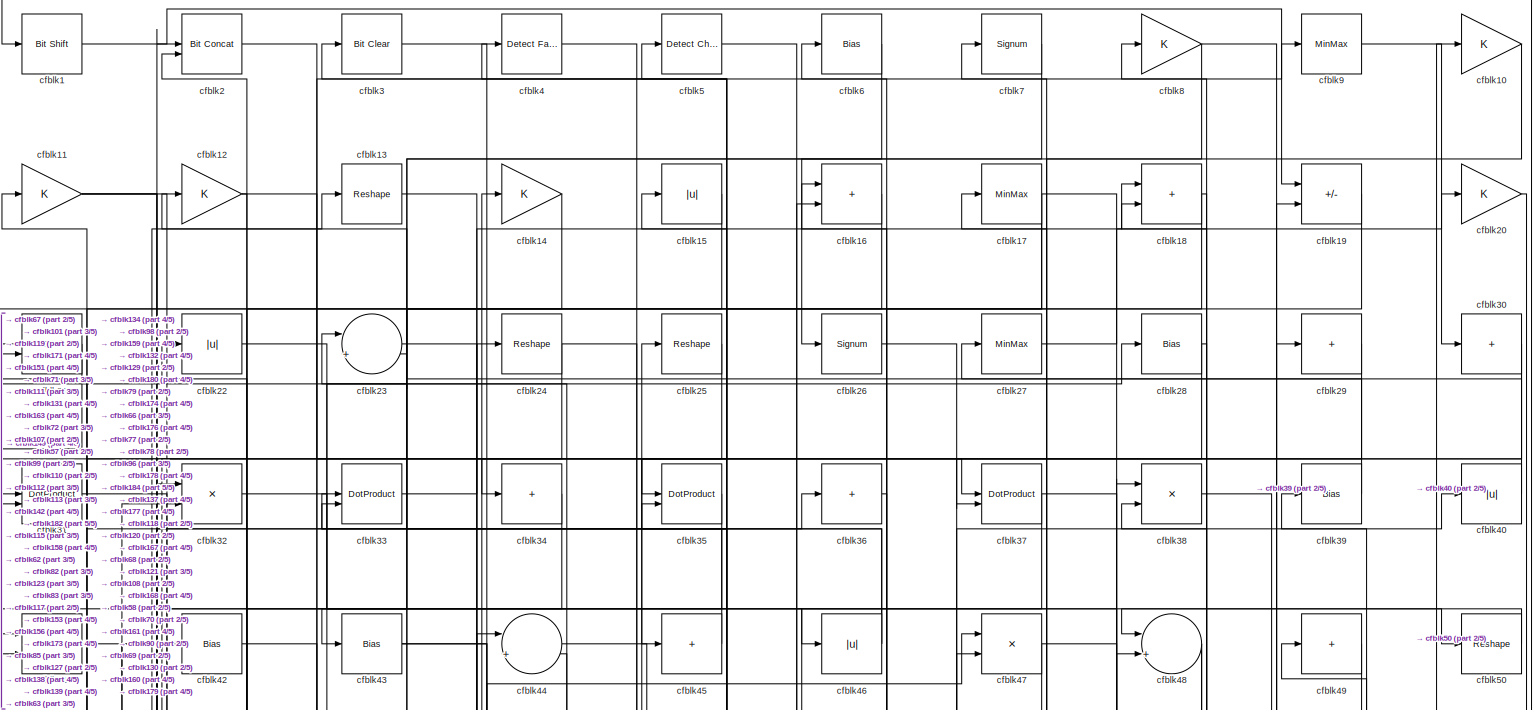
[diagram: root canvas - part 1/5, full width, top band]
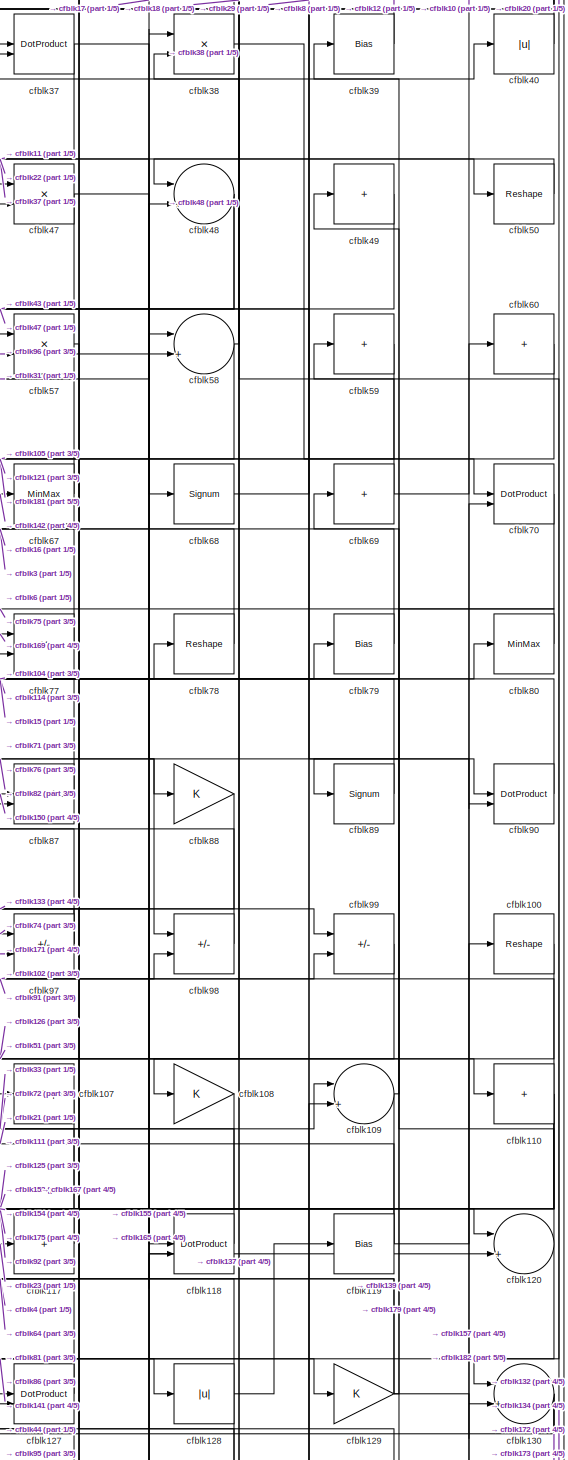
[diagram: root canvas - part 2/5, middle right region]
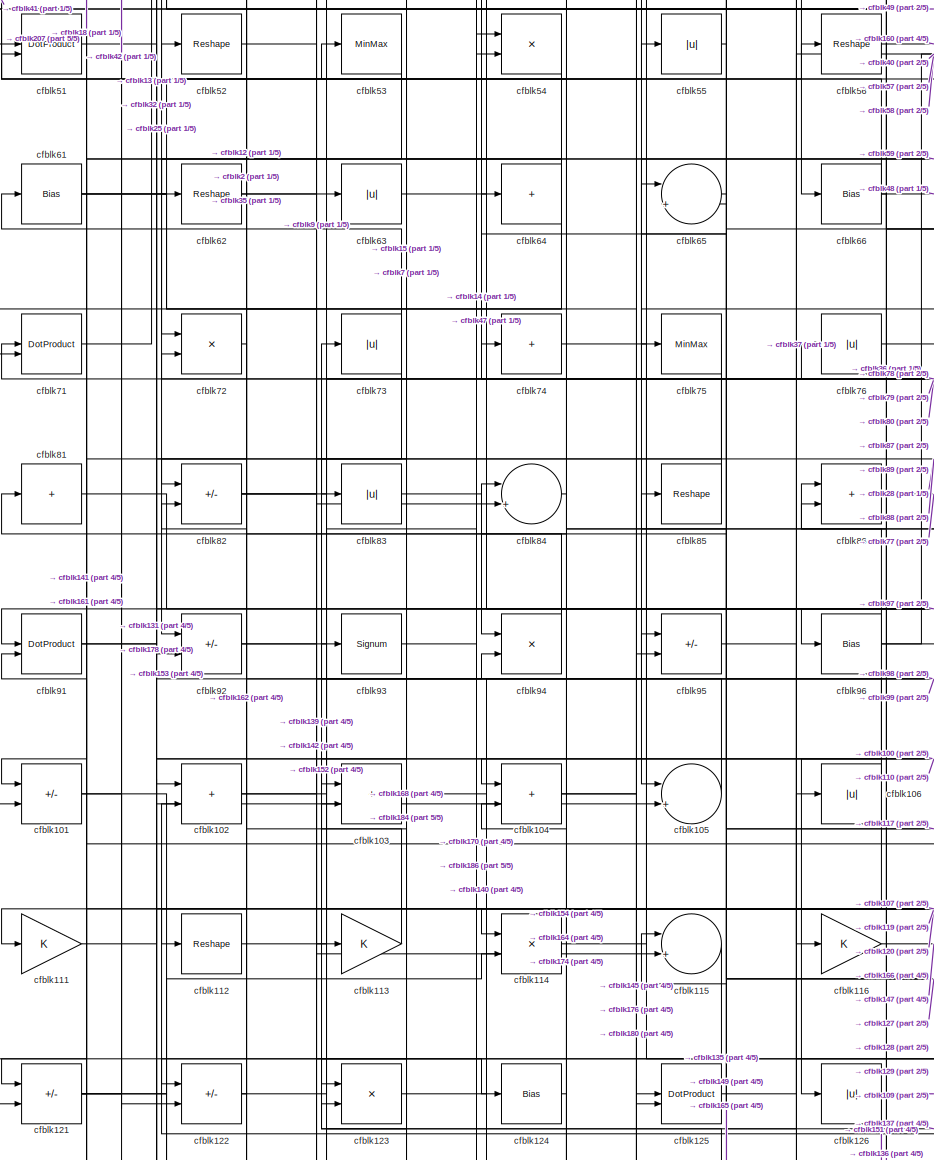
[diagram: root canvas - part 3/5, middle left region]
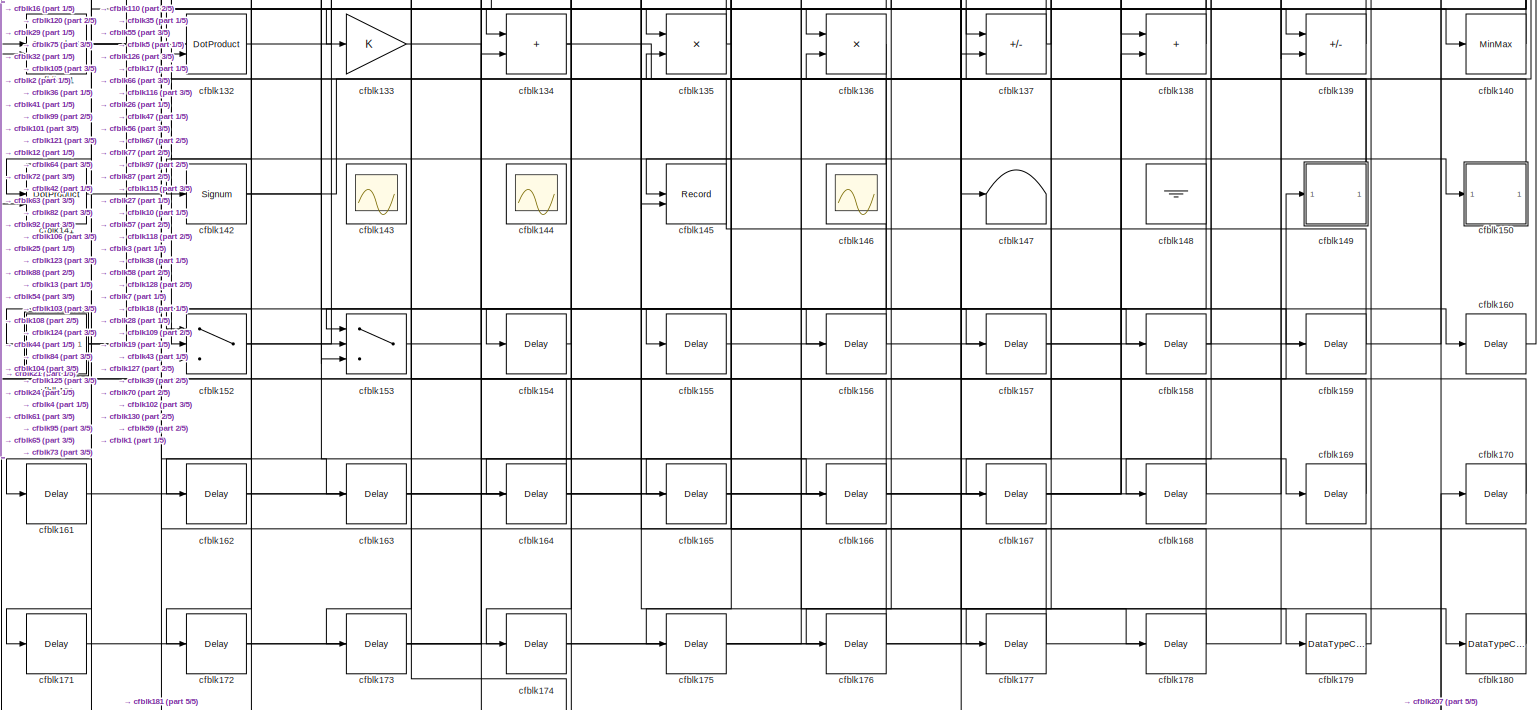
[diagram: root canvas - part 4/5, full width, bottom band]
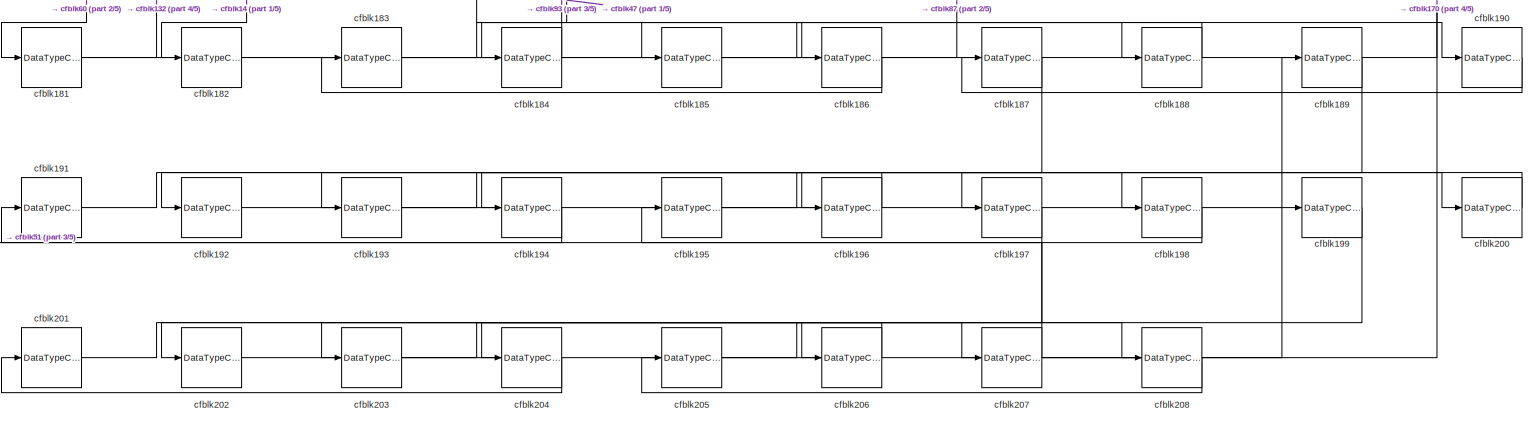
[diagram: root canvas - part 5/5, full width, bottom band]
MODEL slx_182cfaba3d9f
KIND model
CONFIG AbsTol = auto
CONFIG EnableMultiTasking = off
CONFIG FixedStep = auto
CONFIG MaxStep = auto
CONFIG MinStep = auto
CONFIG RelTol = 1e-3
CONFIG SampleTimeConstraint = Unconstrained
CONFIG SolverName = VariableStepAuto
CONFIG StartTime = 0.0
CONFIG StopTime = 10.0
BLOCK [Reference] cfblk1  REF=hdlsllib/Logic and Bit
Operations/Bit Shift
  SourceBlock = hdlsllib/Logic and Bit\nOperations/Bit Shift
  SourceType = Bit Shift
BLOCK [Gain] cfblk10
BLOCK [Reshape] cfblk100
BLOCK [Sum] cfblk101
  IconShape = rectangular
  Inputs = +-
BLOCK [Sum] cfblk102
  IconShape = rectangular
BLOCK [Sum] cfblk103
  IconShape = rectangular
BLOCK [Sum] cfblk104
  IconShape = rectangular
BLOCK [Sum] cfblk105
  Inputs = |++
BLOCK [Abs] cfblk106
  SaturateOnIntegerOverflow = off
BLOCK [Reshape] cfblk107
BLOCK [Gain] cfblk108
BLOCK [Sum] cfblk109
  Inputs = |++
BLOCK [Gain] cfblk11
BLOCK [Sum] cfblk110
  IconShape = rectangular
  Inputs = +
BLOCK [Gain] cfblk111
BLOCK [Reshape] cfblk112
BLOCK [Gain] cfblk113
BLOCK [Product] cfblk114
  Inputs = */
  RndMeth = Zero
  SaturateOnIntegerOverflow = on
BLOCK [Sum] cfblk115
  Inputs = |++
BLOCK [Gain] cfblk116
BLOCK [Sum] cfblk117
  IconShape = rectangular
  Inputs = +
BLOCK [DotProduct] cfblk118
  OutDataTypeStr = Inherit: Inherit via internal rule
BLOCK [Bias] cfblk119
  Bias = 0.0
  SaturateOnIntegerOverflow = off
BLOCK [Gain] cfblk12
BLOCK [Sum] cfblk120
  Inputs = |++
BLOCK [Sum] cfblk121
  IconShape = rectangular
  Inputs = +-
BLOCK [Sum] cfblk122
  IconShape = rectangular
  Inputs = +-
BLOCK [Product] cfblk123
  Inputs = */
  RndMeth = Zero
  SaturateOnIntegerOverflow = on
BLOCK [Bias] cfblk124
  Bias = 0.0
  SaturateOnIntegerOverflow = off
BLOCK [DotProduct] cfblk125
  OutDataTypeStr = Inherit: Inherit via internal rule
BLOCK [Abs] cfblk126
  SaturateOnIntegerOverflow = off
BLOCK [DotProduct] cfblk127
  OutDataTypeStr = Inherit: Inherit via internal rule
BLOCK [Abs] cfblk128
  SaturateOnIntegerOverflow = off
BLOCK [Gain] cfblk129
BLOCK [Reshape] cfblk13
BLOCK [Sum] cfblk130
  Inputs = |++
BLOCK [DotProduct] cfblk131
  OutDataTypeStr = Inherit: Inherit via internal rule
BLOCK [DotProduct] cfblk132
  OutDataTypeStr = Inherit: Inherit via internal rule
BLOCK [Gain] cfblk133
BLOCK [Sum] cfblk134
  IconShape = rectangular
BLOCK [Product] cfblk135
  Inputs = */
  RndMeth = Zero
  SaturateOnIntegerOverflow = on
BLOCK [Product] cfblk136
  Inputs = */
  RndMeth = Zero
  SaturateOnIntegerOverflow = on
BLOCK [Sum] cfblk137
  IconShape = rectangular
  Inputs = +-
BLOCK [Sum] cfblk138
  IconShape = rectangular
BLOCK [Sum] cfblk139
  IconShape = rectangular
  Inputs = +-
BLOCK [Gain] cfblk14
BLOCK [MinMax] cfblk140
BLOCK [DotProduct] cfblk141
  OutDataTypeStr = Inherit: Inherit via internal rule
BLOCK [Signum] cfblk142
BLOCK [Scope] cfblk143
  Floating = on
  NumInputPorts = 1
  ScopeSpecificationString = Simulink.scopes.TimeScopeBlockCfg('CurrentConfiguration', extmgr.ConfigurationSet(extmgr.Configuration('Core','General UI',true,'FigureColor',[0.156862745098039 0.156862745098039 0.156862745098039]),extmgr.Configuration('Core','Source UI',true),extmgr.Configuration('Sources','WiredSimulink',true,'DataLoggingVariableName','ScopeData1','DataLoggingSaveFormat','StructureWithTime','DataLoggingLimitDat...<+2713ch>  <repeated x3 — deduplicated; at blocks: cfblk143, cfblk144, cfblk146>
BLOCK [Scope] cfblk144
  Floating = on
  NumInputPorts = 1
BLOCK [Record] cfblk145
  CompatibilityTag = XY
  FileSettingsInternal = {"entries":[{"content":{"excelSettings":{"content":{},"type":"Streamout.ExcelSettings"}},"type":"Streamout.FileSettingStorage","uuid":""}],"packageUris":["http:\/\/schema.mathworks.com\/mf0\/streamout_blocks\/R2020a"],"version":"1.0"}
  Layout = [1 1]
  SignalsInternal = {"entries":[{"content":{"signals":[{"content":{"blockPath":[],"dimensions":[1],"domain":"","lineColor":"#a2142f","plots":[1],"port":1,"signalID":3516,"signalName":"XY Graph:1"},"type":"RecordBlkView.Signal","uuid":""},{"content":{"blockPath":[],"dimensions":[1],"domain":"","lineColor":"#139fff","plots":[1],"port":2,"signalID":3519,"signalName":"XY Graph:2"},"type":"RecordBlkView.Signal","uuid":""}...<+146ch>
  VisualizationBindings = {"xyplotplugin":{"info":[{"series":[{"bindingParametersList":[{"parameter":"X-Axis","signalID":3516,"signalName":"XY Graph:1"},{"parameter":"Y-Axis","signalID":3519,"signalName":"XY Graph:2"}],"seriesID":43159}],"subplotID":1}]}}
  st = -1
BLOCK [Scope] cfblk146
  Floating = on
  NumInputPorts = 1
BLOCK [Terminator] cfblk147
BLOCK [Ground] cfblk148
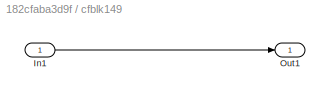
BLOCK [SubSystem] cfblk149
  LibrarySourceBlock = hdlsllib/Ports &\nSubsystems/Subsystem
BLOCK [Inport] cfblk149/In1
BLOCK [Outport] cfblk149/Out1
BLOCK [Abs] cfblk15
  SaturateOnIntegerOverflow = off
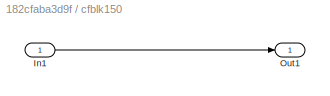
BLOCK [SubSystem] cfblk150
  LibrarySourceBlock = hdlsllib/Ports &\nSubsystems/Subsystem
BLOCK [Inport] cfblk150/In1
BLOCK [Outport] cfblk150/Out1
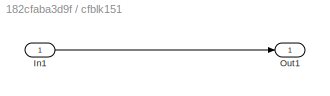
BLOCK [SubSystem] cfblk151
  LibrarySourceBlock = hdlsllib/Ports &\nSubsystems/Subsystem
BLOCK [Inport] cfblk151/In1
BLOCK [Outport] cfblk151/Out1
BLOCK [Switch] cfblk152
  InputSameDT = off
  SaturateOnIntegerOverflow = off
BLOCK [Switch] cfblk153
  InputSameDT = off
  SaturateOnIntegerOverflow = off
BLOCK [Delay] cfblk154
  InputPortMap = u0
  SampleTime = 1
BLOCK [Delay] cfblk155
  InputPortMap = u0
  SampleTime = 1
BLOCK [Delay] cfblk156
  InputPortMap = u0
  SampleTime = 1
BLOCK [Delay] cfblk157
  InputPortMap = u0
  SampleTime = 1
BLOCK [Delay] cfblk158
  InputPortMap = u0
  SampleTime = 1
BLOCK [Delay] cfblk159
  InputPortMap = u0
  SampleTime = 1
BLOCK [Sum] cfblk16
  IconShape = rectangular
BLOCK [Delay] cfblk160
  InputPortMap = u0
  SampleTime = 1
BLOCK [Delay] cfblk161
  InputPortMap = u0
  SampleTime = 1
BLOCK [Delay] cfblk162
  InputPortMap = u0
  SampleTime = 1
BLOCK [Delay] cfblk163
  InputPortMap = u0
  SampleTime = 1
BLOCK [Delay] cfblk164
  InputPortMap = u0
  SampleTime = 1
BLOCK [Delay] cfblk165
  InputPortMap = u0
  SampleTime = 1
BLOCK [Delay] cfblk166
  InputPortMap = u0
  SampleTime = 1
BLOCK [Delay] cfblk167
  InputPortMap = u0
  SampleTime = 1
BLOCK [Delay] cfblk168
  InputPortMap = u0
  SampleTime = 1
BLOCK [Delay] cfblk169
  InputPortMap = u0
  SampleTime = 1
BLOCK [MinMax] cfblk17
BLOCK [Delay] cfblk170
  InputPortMap = u0
  SampleTime = 1
BLOCK [Delay] cfblk171
  InputPortMap = u0
  SampleTime = 1
BLOCK [Delay] cfblk172
  InputPortMap = u0
  SampleTime = 1
BLOCK [Delay] cfblk173
  InputPortMap = u0
  SampleTime = 1
BLOCK [Delay] cfblk174
  InputPortMap = u0
  SampleTime = 1
BLOCK [Delay] cfblk175
  InputPortMap = u0
  SampleTime = 1
BLOCK [Delay] cfblk176
  InputPortMap = u0
  SampleTime = 1
BLOCK [Delay] cfblk177
  InputPortMap = u0
  SampleTime = 1
BLOCK [Delay] cfblk178
  InputPortMap = u0
  SampleTime = 1
BLOCK [DataTypeConversion] cfblk179
  OutDataTypeStr = uint8
  RndMeth = Floor
  SaturateOnIntegerOverflow = off
BLOCK [Sum] cfblk18
  IconShape = rectangular
BLOCK [DataTypeConversion] cfblk180
  OutDataTypeStr = uint8
  RndMeth = Floor
  SaturateOnIntegerOverflow = off
BLOCK [DataTypeConversion] cfblk181
  RndMeth = Floor
  SaturateOnIntegerOverflow = off
BLOCK [DataTypeConversion] cfblk182
  OutDataTypeStr = uint8
  RndMeth = Floor
  SaturateOnIntegerOverflow = off
BLOCK [DataTypeConversion] cfblk183
  RndMeth = Floor
  SaturateOnIntegerOverflow = off
BLOCK [DataTypeConversion] cfblk184
  OutDataTypeStr = uint8
  RndMeth = Floor
  SaturateOnIntegerOverflow = off
BLOCK [DataTypeConversion] cfblk185
  RndMeth = Floor
  SaturateOnIntegerOverflow = off
BLOCK [DataTypeConversion] cfblk186
  OutDataTypeStr = uint8
  RndMeth = Floor
  SaturateOnIntegerOverflow = off
BLOCK [DataTypeConversion] cfblk187
  RndMeth = Floor
  SaturateOnIntegerOverflow = off
BLOCK [DataTypeConversion] cfblk188
  OutDataTypeStr = uint8
  RndMeth = Floor
  SaturateOnIntegerOverflow = off
BLOCK [DataTypeConversion] cfblk189
  RndMeth = Floor
  SaturateOnIntegerOverflow = off
BLOCK [Sum] cfblk19
  IconShape = rectangular
  Inputs = +-
BLOCK [DataTypeConversion] cfblk190
  OutDataTypeStr = uint8
  RndMeth = Floor
  SaturateOnIntegerOverflow = off
BLOCK [DataTypeConversion] cfblk191
  RndMeth = Floor
  SaturateOnIntegerOverflow = off
BLOCK [DataTypeConversion] cfblk192
  OutDataTypeStr = uint8
  RndMeth = Floor
  SaturateOnIntegerOverflow = off
BLOCK [DataTypeConversion] cfblk193
  RndMeth = Floor
  SaturateOnIntegerOverflow = off
BLOCK [DataTypeConversion] cfblk194
  OutDataTypeStr = uint8
  RndMeth = Floor
  SaturateOnIntegerOverflow = off
BLOCK [DataTypeConversion] cfblk195
  RndMeth = Floor
  SaturateOnIntegerOverflow = off
BLOCK [DataTypeConversion] cfblk196
  OutDataTypeStr = uint8
  RndMeth = Floor
  SaturateOnIntegerOverflow = off
BLOCK [DataTypeConversion] cfblk197
  RndMeth = Floor
  SaturateOnIntegerOverflow = off
BLOCK [DataTypeConversion] cfblk198
  OutDataTypeStr = uint8
  RndMeth = Floor
  SaturateOnIntegerOverflow = off
BLOCK [DataTypeConversion] cfblk199
  RndMeth = Floor
  SaturateOnIntegerOverflow = off
BLOCK [Reference] cfblk2  REF=hdlsllib/Logic and Bit
Operations/Bit Concat
  SourceBlock = hdlsllib/Logic and Bit\nOperations/Bit Concat
  SourceType = Bit Concat
BLOCK [Gain] cfblk20
BLOCK [DataTypeConversion] cfblk200
  OutDataTypeStr = uint8
  RndMeth = Floor
  SaturateOnIntegerOverflow = off
BLOCK [DataTypeConversion] cfblk201
  RndMeth = Floor
  SaturateOnIntegerOverflow = off
BLOCK [DataTypeConversion] cfblk202
  OutDataTypeStr = uint8
  RndMeth = Floor
  SaturateOnIntegerOverflow = off
BLOCK [DataTypeConversion] cfblk203
  RndMeth = Floor
  SaturateOnIntegerOverflow = off
BLOCK [DataTypeConversion] cfblk204
  OutDataTypeStr = uint8
  RndMeth = Floor
  SaturateOnIntegerOverflow = off
BLOCK [DataTypeConversion] cfblk205
  RndMeth = Floor
  SaturateOnIntegerOverflow = off
BLOCK [DataTypeConversion] cfblk206
  OutDataTypeStr = uint8
  RndMeth = Floor
  SaturateOnIntegerOverflow = off
BLOCK [DataTypeConversion] cfblk207
  RndMeth = Floor
  SaturateOnIntegerOverflow = off
BLOCK [DataTypeConversion] cfblk208
  OutDataTypeStr = uint8
  RndMeth = Floor
  SaturateOnIntegerOverflow = off
BLOCK [DotProduct] cfblk21
  OutDataTypeStr = Inherit: Inherit via internal rule
BLOCK [Abs] cfblk22
  SaturateOnIntegerOverflow = off
BLOCK [Sum] cfblk23
  Inputs = |++
BLOCK [Reshape] cfblk24
BLOCK [Reshape] cfblk25
BLOCK [Signum] cfblk26
BLOCK [MinMax] cfblk27
BLOCK [Bias] cfblk28
  Bias = 0.0
  SaturateOnIntegerOverflow = off
BLOCK [Sum] cfblk29
  IconShape = rectangular
  Inputs = +
BLOCK [Reference] cfblk3  REF=simulink/Logic and Bit
Operations/Bit Clear
  LibrarySourceBlock = hdlsllib/Logic and Bit\nOperations/Bit Clear
  SourceBlock = simulink/Logic and Bit\nOperations/Bit Clear
  SourceType = Bit Clear
BLOCK [Sum] cfblk30
  IconShape = rectangular
  Inputs = +
BLOCK [DotProduct] cfblk31
  OutDataTypeStr = Inherit: Inherit via internal rule
BLOCK [Product] cfblk32
  Inputs = */
  RndMeth = Zero
  SaturateOnIntegerOverflow = on
BLOCK [DotProduct] cfblk33
  OutDataTypeStr = Inherit: Inherit via internal rule
BLOCK [Sum] cfblk34
  IconShape = rectangular
  Inputs = +
BLOCK [DotProduct] cfblk35
  OutDataTypeStr = Inherit: Inherit via internal rule
BLOCK [Sum] cfblk36
  IconShape = rectangular
  Inputs = +
BLOCK [DotProduct] cfblk37
  OutDataTypeStr = Inherit: Inherit via internal rule
BLOCK [Product] cfblk38
  Inputs = */
  RndMeth = Zero
  SaturateOnIntegerOverflow = on
BLOCK [Bias] cfblk39
  Bias = 0.0
  SaturateOnIntegerOverflow = off
BLOCK [Reference] cfblk4  REF=hdlsllib/Logic and Bit
Operations/Detect Fall
Nonpositive
  SourceBlock = hdlsllib/Logic and Bit\nOperations/Detect Fall\nNonpositive
  SourceType = Detect Fall Nonpositive
BLOCK [Abs] cfblk40
  SaturateOnIntegerOverflow = off
BLOCK [Product] cfblk41
  Inputs = */
  RndMeth = Zero
  SaturateOnIntegerOverflow = on
BLOCK [Bias] cfblk42
  Bias = 0.0
  SaturateOnIntegerOverflow = off
BLOCK [Bias] cfblk43
  Bias = 0.0
  SaturateOnIntegerOverflow = off
BLOCK [Sum] cfblk44
  Inputs = |++
BLOCK [Sum] cfblk45
  IconShape = rectangular
  Inputs = +
BLOCK [Abs] cfblk46
  SaturateOnIntegerOverflow = off
BLOCK [Product] cfblk47
  Inputs = */
  RndMeth = Zero
  SaturateOnIntegerOverflow = on
BLOCK [Sum] cfblk48
  Inputs = |++
BLOCK [Sum] cfblk49
  IconShape = rectangular
  Inputs = +
BLOCK [Reference] cfblk5  REF=simulink/Logic and Bit
Operations/Detect
Change
  LibrarySourceBlock = hdlsllib/Logic and Bit\nOperations/Detect\nChange
  SourceBlock = simulink/Logic and Bit\nOperations/Detect\nChange
  SourceType = Detect Change
BLOCK [Reshape] cfblk50
BLOCK [DotProduct] cfblk51
  OutDataTypeStr = Inherit: Inherit via internal rule
BLOCK [Reshape] cfblk52
BLOCK [MinMax] cfblk53
BLOCK [Product] cfblk54
  Inputs = */
  RndMeth = Zero
  SaturateOnIntegerOverflow = on
BLOCK [Abs] cfblk55
  SaturateOnIntegerOverflow = off
BLOCK [Reshape] cfblk56
BLOCK [Product] cfblk57
  Inputs = */
  RndMeth = Zero
  SaturateOnIntegerOverflow = on
BLOCK [Sum] cfblk58
  Inputs = |++
BLOCK [Sum] cfblk59
  IconShape = rectangular
  Inputs = +
BLOCK [Bias] cfblk6
  Bias = 0.0
  SaturateOnIntegerOverflow = off
BLOCK [Sum] cfblk60
  IconShape = rectangular
  Inputs = +
BLOCK [Bias] cfblk61
  Bias = 0.0
  SaturateOnIntegerOverflow = off
BLOCK [Reshape] cfblk62
BLOCK [Abs] cfblk63
  SaturateOnIntegerOverflow = off
BLOCK [Sum] cfblk64
  IconShape = rectangular
  Inputs = +
BLOCK [Sum] cfblk65
  Inputs = |++
BLOCK [Bias] cfblk66
  Bias = 0.0
  SaturateOnIntegerOverflow = off
BLOCK [MinMax] cfblk67
BLOCK [Signum] cfblk68
BLOCK [Sum] cfblk69
  IconShape = rectangular
  Inputs = +
BLOCK [Signum] cfblk7
BLOCK [DotProduct] cfblk70
  OutDataTypeStr = Inherit: Inherit via internal rule
BLOCK [DotProduct] cfblk71
  OutDataTypeStr = Inherit: Inherit via internal rule
BLOCK [Product] cfblk72
  Inputs = */
  RndMeth = Zero
  SaturateOnIntegerOverflow = on
BLOCK [Abs] cfblk73
  SaturateOnIntegerOverflow = off
BLOCK [Sum] cfblk74
  IconShape = rectangular
  Inputs = +
BLOCK [MinMax] cfblk75
BLOCK [Abs] cfblk76
  SaturateOnIntegerOverflow = off
BLOCK [Product] cfblk77
  Inputs = */
  RndMeth = Zero
  SaturateOnIntegerOverflow = on
BLOCK [Reshape] cfblk78
BLOCK [Bias] cfblk79
  Bias = 0.0
  SaturateOnIntegerOverflow = off
BLOCK [Gain] cfblk8
BLOCK [MinMax] cfblk80
BLOCK [Sum] cfblk81
  IconShape = rectangular
  Inputs = +
BLOCK [Sum] cfblk82
  IconShape = rectangular
  Inputs = +-
BLOCK [Abs] cfblk83
  SaturateOnIntegerOverflow = off
BLOCK [Sum] cfblk84
  Inputs = |++
BLOCK [Reshape] cfblk85
BLOCK [Sum] cfblk86
  IconShape = rectangular
BLOCK [DotProduct] cfblk87
  OutDataTypeStr = Inherit: Inherit via internal rule
BLOCK [Gain] cfblk88
BLOCK [Signum] cfblk89
BLOCK [MinMax] cfblk9
BLOCK [DotProduct] cfblk90
  OutDataTypeStr = Inherit: Inherit via internal rule
BLOCK [DotProduct] cfblk91
  OutDataTypeStr = Inherit: Inherit via internal rule
BLOCK [Sum] cfblk92
  IconShape = rectangular
  Inputs = +-
BLOCK [Signum] cfblk93
BLOCK [Product] cfblk94
  Inputs = */
  RndMeth = Zero
  SaturateOnIntegerOverflow = on
BLOCK [Sum] cfblk95
  IconShape = rectangular
  Inputs = +-
BLOCK [Bias] cfblk96
  Bias = 0.0
  SaturateOnIntegerOverflow = off
BLOCK [Sum] cfblk97
  IconShape = rectangular
  Inputs = +-
BLOCK [Sum] cfblk98
  IconShape = rectangular
  Inputs = +-
BLOCK [Sum] cfblk99
  IconShape = rectangular
  Inputs = +-
LINE cfblk100:1 -> cfblk126:1
NET cfblk101:1 -> cfblk122:2, cfblk135:1
NET cfblk102:1 -> cfblk79:1, cfblk98:2
LINE cfblk103:1 -> cfblk140:1
NET cfblk104:1 -> cfblk180:1, cfblk78:1
LINE cfblk105:1 -> cfblk53:1
NET cfblk106:1 -> cfblk161:1, cfblk85:1
LINE cfblk107:1 -> cfblk114:1
LINE cfblk108:1 -> cfblk154:1
NET cfblk109:1 -> cfblk125:2, cfblk69:1
LINE cfblk10:1 -> cfblk177:1
NET cfblk110:1 -> cfblk134:1, cfblk152:3, cfblk175:1, cfblk22:1
LINE cfblk111:1 -> cfblk32:1
LINE cfblk112:1 -> cfblk54:2
LINE cfblk113:1 -> cfblk2:2
LINE cfblk114:1 -> cfblk80:1
LINE cfblk115:1 -> cfblk122:1
LINE cfblk116:1 -> cfblk147:1
LINE cfblk117:1 -> cfblk72:2
LINE cfblk118:1 -> cfblk33:1
NET cfblk119:1 -> cfblk100:1, cfblk111:1, cfblk21:2
NET cfblk11:1 -> cfblk50:1, cfblk57:1, cfblk99:1
NET cfblk120:1 -> cfblk141:2, cfblk76:1
NET cfblk121:1 -> cfblk114:2, cfblk153:3, cfblk42:1, cfblk91:2
NET cfblk122:1 -> cfblk82:2, cfblk94:2
LINE cfblk123:1 -> cfblk95:1
LINE cfblk124:1 -> cfblk174:1
LINE cfblk125:1 -> cfblk58:2
NET cfblk126:1 -> cfblk109:1, cfblk151:1
LINE cfblk127:1 -> cfblk81:1
NET cfblk128:1 -> cfblk119:1, cfblk137:2, cfblk86:2
NET cfblk129:1 -> cfblk130:2, cfblk49:1, cfblk4:1, cfblk64:1
NET cfblk12:1 -> cfblk115:2, cfblk142:1
NET cfblk130:1 -> cfblk132:1, cfblk172:1, cfblk173:1
NET cfblk131:1 -> cfblk105:2, cfblk150:1, cfblk36:1
LINE cfblk132:1 -> cfblk25:1
LINE cfblk133:1 -> cfblk169:1
NET cfblk134:1 -> cfblk44:2, cfblk59:1
NET cfblk135:1 -> cfblk65:1, cfblk73:1
LINE cfblk136:1 -> cfblk155:1
NET cfblk137:1 -> cfblk115:1, cfblk27:1
LINE cfblk138:1 -> cfblk7:1
LINE cfblk139:1 -> cfblk127:2
LINE cfblk13:1 -> cfblk156:1
LINE cfblk140:1 -> cfblk102:2
LINE cfblk141:1 -> cfblk157:1
NET cfblk142:1 -> cfblk63:1, cfblk67:1
NET cfblk148:1 -> cfblk136:2, cfblk153:1
LINE cfblk149/In1:1 -> cfblk149/Out1:1
NET cfblk149:1 -> cfblk65:2, cfblk84:1
LINE cfblk14:1 -> cfblk182:1
LINE cfblk150/In1:1 -> cfblk150/Out1:1
LINE cfblk150:1 -> cfblk87:1
LINE cfblk151/In1:1 -> cfblk151/Out1:1
NET cfblk151:1 -> cfblk32:2, cfblk47:2
NET cfblk152:1 -> cfblk106:1, cfblk153:2
LINE cfblk153:1 -> cfblk24:1
LINE cfblk154:1 -> cfblk104:2
LINE cfblk155:1 -> cfblk58:1
LINE cfblk156:1 -> cfblk2:1
LINE cfblk157:1 -> cfblk70:2
LINE cfblk158:1 -> cfblk18:2
LINE cfblk159:1 -> cfblk135:2
LINE cfblk15:1 -> cfblk83:1
LINE cfblk160:1 -> cfblk1:1
LINE cfblk161:1 -> cfblk19:2
LINE cfblk162:1 -> cfblk95:2
LINE cfblk163:1 -> cfblk138:2
LINE cfblk164:1 -> cfblk131:1
LINE cfblk165:1 -> cfblk118:2
LINE cfblk166:1 -> cfblk123:2
LINE cfblk167:1 -> cfblk38:1
LINE cfblk168:1 -> cfblk103:2
LINE cfblk169:1 -> cfblk77:1
LINE cfblk16:1 -> cfblk131:2
LINE cfblk170:1 -> cfblk54:1
LINE cfblk171:1 -> cfblk97:2
LINE cfblk172:1 -> cfblk134:2
LINE cfblk173:1 -> cfblk44:1
LINE cfblk174:1 -> cfblk16:2
LINE cfblk175:1 -> cfblk109:2
LINE cfblk176:1 -> cfblk125:1
LINE cfblk177:1 -> cfblk35:2
LINE cfblk178:1 -> cfblk102:1
LINE cfblk179:1 -> cfblk39:1
NET cfblk17:1 -> cfblk120:2, cfblk176:1, cfblk23:2
LINE cfblk180:1 -> cfblk5:1
NET cfblk181:1 -> cfblk132:2, cfblk87:2
LINE cfblk182:1 -> cfblk60:1
LINE cfblk183:1 -> cfblk188:1
LINE cfblk184:1 -> cfblk93:1
LINE cfblk185:1 -> cfblk190:1
LINE cfblk186:1 -> cfblk183:1
LINE cfblk187:1 -> cfblk192:1
LINE cfblk188:1 -> cfblk185:1
LINE cfblk189:1 -> cfblk194:1
NET cfblk18:1 -> cfblk101:1, cfblk108:1
LINE cfblk190:1 -> cfblk187:1
LINE cfblk191:1 -> cfblk196:1
LINE cfblk192:1 -> cfblk189:1
LINE cfblk193:1 -> cfblk198:1
LINE cfblk194:1 -> cfblk191:1
LINE cfblk195:1 -> cfblk200:1
LINE cfblk196:1 -> cfblk193:1
LINE cfblk197:1 -> cfblk202:1
LINE cfblk198:1 -> cfblk195:1
LINE cfblk199:1 -> cfblk204:1
LINE cfblk19:1 -> cfblk35:1
LINE cfblk1:1 -> cfblk19:1
LINE cfblk200:1 -> cfblk197:1
LINE cfblk201:1 -> cfblk206:1
LINE cfblk202:1 -> cfblk199:1
LINE cfblk203:1 -> cfblk208:1
LINE cfblk204:1 -> cfblk201:1
LINE cfblk205:1 -> cfblk207:1
LINE cfblk206:1 -> cfblk203:1
NET cfblk207:1 -> cfblk170:1, cfblk51:1
LINE cfblk208:1 -> cfblk205:1
LINE cfblk20:1 -> cfblk130:1
LINE cfblk21:1 -> cfblk149:1
LINE cfblk22:1 -> cfblk68:1
LINE cfblk23:1 -> cfblk117:1
NET cfblk24:1 -> cfblk159:1, cfblk31:1
LINE cfblk25:1 -> cfblk72:1
LINE cfblk26:1 -> cfblk178:1
LINE cfblk27:1 -> cfblk20:1
NET cfblk28:1 -> cfblk168:1, cfblk45:1
LINE cfblk29:1 -> cfblk171:1
LINE cfblk2:1 -> cfblk37:1
NET cfblk30:1 -> cfblk34:1, cfblk37:2
LINE cfblk31:1 -> cfblk107:1
LINE cfblk32:1 -> cfblk46:1
LINE cfblk33:1 -> cfblk18:1
LINE cfblk34:1 -> cfblk41:1
LINE cfblk35:1 -> cfblk112:1
LINE cfblk36:1 -> cfblk96:1
NET cfblk37:1 -> cfblk66:1, cfblk90:1
LINE cfblk38:1 -> cfblk70:1
LINE cfblk39:1 -> cfblk12:1
LINE cfblk3:1 -> cfblk138:1
LINE cfblk40:1 -> cfblk17:1
LINE cfblk41:1 -> cfblk163:1
LINE cfblk42:1 -> cfblk158:1
NET cfblk43:1 -> cfblk127:1, cfblk139:2
LINE cfblk44:1 -> cfblk129:1
LINE cfblk45:1 -> cfblk11:1
NET cfblk46:1 -> cfblk23:1, cfblk33:2
NET cfblk47:1 -> cfblk118:1, cfblk184:1
NET cfblk48:1 -> cfblk121:2, cfblk71:2
LINE cfblk49:1 -> cfblk82:1
LINE cfblk4:1 -> cfblk137:1
LINE cfblk50:1 -> cfblk48:1
LINE cfblk51:1 -> cfblk110:1
LINE cfblk52:1 -> cfblk84:2
LINE cfblk53:1 -> cfblk92:1
LINE cfblk54:1 -> cfblk103:1
LINE cfblk55:1 -> cfblk145:1
LINE cfblk56:1 -> cfblk160:1
LINE cfblk57:1 -> cfblk167:1
NET cfblk58:1 -> cfblk121:1, cfblk38:2
LINE cfblk59:1 -> cfblk105:1
LINE cfblk5:1 -> cfblk179:1
LINE cfblk60:1 -> cfblk181:1
NET cfblk61:1 -> cfblk113:1, cfblk145:2, cfblk55:1
NET cfblk62:1 -> cfblk124:1, cfblk9:1
LINE cfblk63:1 -> cfblk47:1
NET cfblk64:1 -> cfblk101:2, cfblk152:1, cfblk62:1
LINE cfblk65:1 -> cfblk165:1
NET cfblk66:1 -> cfblk136:1, cfblk41:2, cfblk48:2
LINE cfblk67:1 -> cfblk31:2
LINE cfblk68:1 -> cfblk29:1
NET cfblk69:1 -> cfblk10:1, cfblk8:1
LINE cfblk6:1 -> cfblk43:1
LINE cfblk70:1 -> cfblk89:1
LINE cfblk71:1 -> cfblk13:1
LINE cfblk72:1 -> cfblk162:1
NET cfblk73:1 -> cfblk61:1, cfblk92:2
LINE cfblk74:1 -> cfblk97:1
LINE cfblk75:1 -> cfblk141:1
LINE cfblk76:1 -> cfblk98:1
LINE cfblk77:1 -> cfblk16:1
LINE cfblk78:1 -> cfblk6:1
LINE cfblk79:1 -> cfblk3:1
LINE cfblk7:1 -> cfblk123:1
LINE cfblk80:1 -> cfblk75:1
LINE cfblk81:1 -> cfblk116:1
NET cfblk82:1 -> cfblk139:1, cfblk28:1, cfblk88:1
LINE cfblk83:1 -> cfblk94:1
LINE cfblk84:1 -> cfblk164:1
LINE cfblk85:1 -> cfblk14:1
LINE cfblk86:1 -> cfblk77:2
LINE cfblk87:1 -> cfblk71:1
LINE cfblk88:1 -> cfblk133:1
LINE cfblk89:1 -> cfblk74:1
NET cfblk8:1 -> cfblk26:1, cfblk90:2
LINE cfblk90:1 -> cfblk15:1
NET cfblk91:1 -> cfblk56:1, cfblk99:2
NET cfblk92:1 -> cfblk120:1, cfblk166:1
LINE cfblk93:1 -> cfblk186:1
LINE cfblk94:1 -> cfblk52:1
LINE cfblk95:1 -> cfblk128:1
NET cfblk96:1 -> cfblk104:1, cfblk40:1, cfblk51:2, cfblk57:2
NET cfblk97:1 -> cfblk86:1, cfblk91:1
LINE cfblk98:1 -> cfblk21:1
LINE cfblk99:1 -> cfblk152:2
LINE cfblk9:1 -> cfblk30:1
note: NET lines group one-source signal fan-out (src -> all destinations, sorted); 1:1 wires keep LINE
